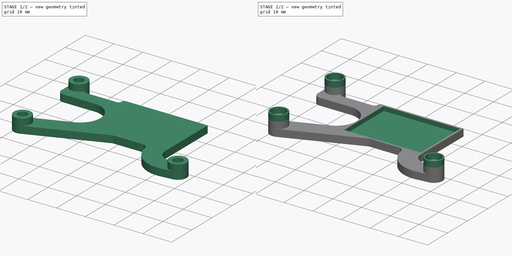
[diagram: build sequence overview — one tinted view per stage of 2, left to right]
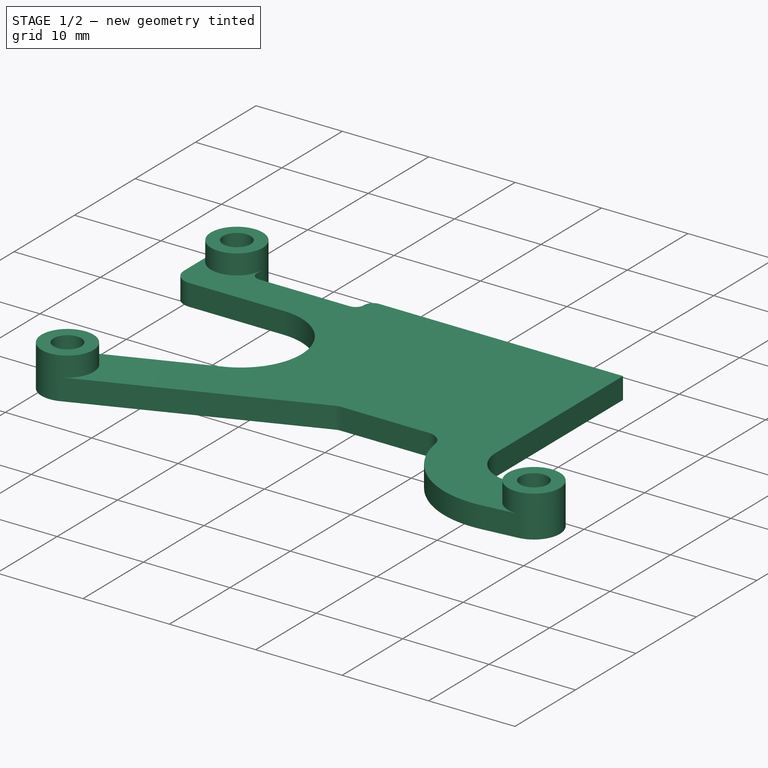
[diagram: stage 1 of 2 — iso view after this stage's code; geometry added in this stage tinted green]
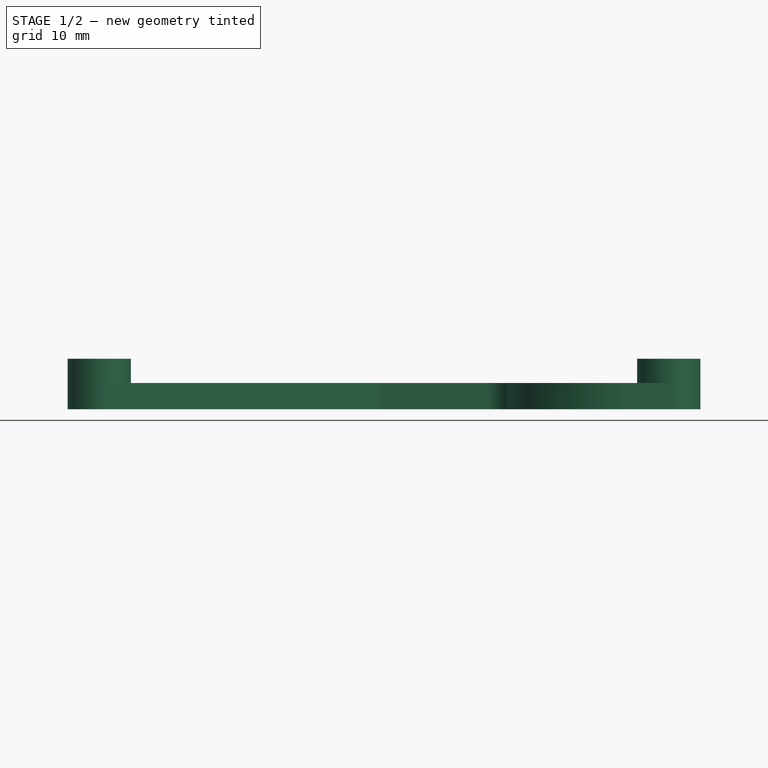
[diagram: stage 1 of 2 — front view after this stage's code; geometry added in this stage tinted green]
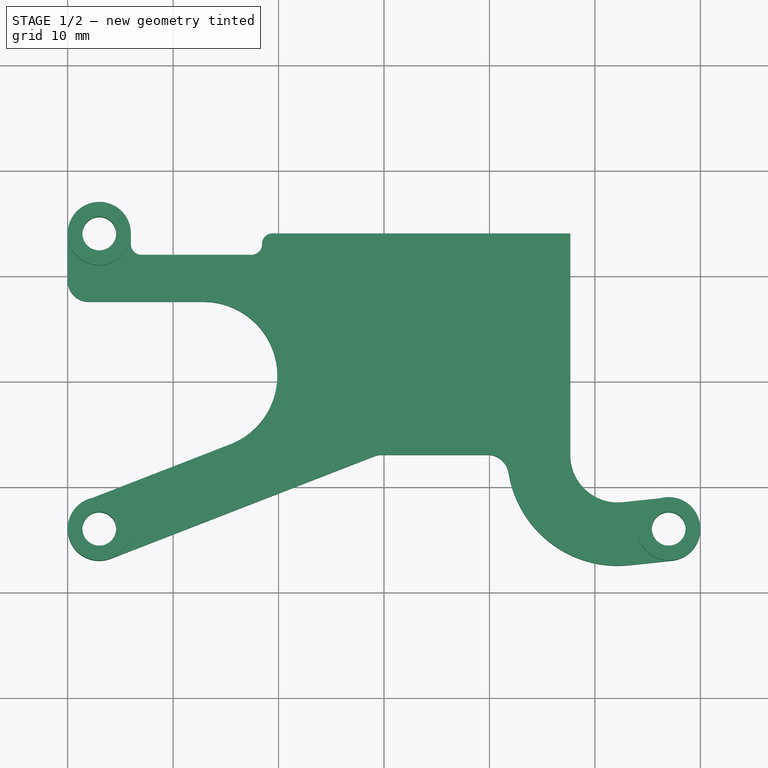
[diagram: stage 1 of 2 — top view after this stage's code; geometry added in this stage tinted green]
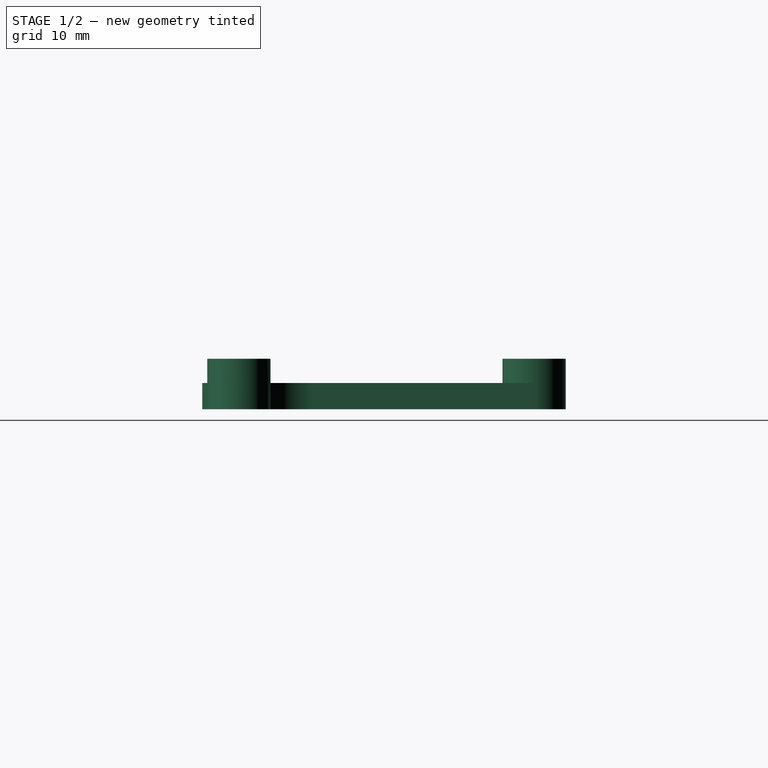
[diagram: stage 1 of 2 — right view after this stage's code; geometry added in this stage tinted green]
FCSTD DOCUMENT  (FreeCAD 0.16R)
Label: gpsframe2
License: CreativeCommons Attribution-ShareAlike
LicenseURL: http://creativecommons.org/licenses/by-sa/4.0/
objects: Sketcher::SketchObject×5, PartDesign::Pad×3, PartDesign::Pocket×1
note: 13 computed .brp shape members not serialized (recipe doc carries the construction recipe); baked Part::Feature solids carry a one-line shape summary decoded from their .brp

FEATURE [Sketcher::SketchObject] Sketch003  label="Holder Sketch"
  sketch-geometry (53):
    g0: Circle [constr] CenterX=-27 CenterY=14 CenterZ=0 NormalX=0 NormalY=0 NormalZ=1 Radius=2.375
    g1: Circle CenterX=-27 CenterY=14 CenterZ=0 NormalX=0 NormalY=0 NormalZ=1 Radius=1.6
    g2: Circle [constr] CenterX=27 CenterY=14 CenterZ=0 NormalX=0 NormalY=0 NormalZ=1 Radius=2.375
    g3: Circle [constr] CenterX=27 CenterY=14 CenterZ=0 NormalX=0 NormalY=0 NormalZ=1 Radius=1.6
    g4: Circle [constr] CenterX=27 CenterY=-14 CenterZ=0 NormalX=0 NormalY=0 NormalZ=1 Radius=2.375
    g5: Circle CenterX=27 CenterY=-14 CenterZ=0 NormalX=0 NormalY=0 NormalZ=1 Radius=1.6
    g6: Circle [constr] CenterX=-27 CenterY=-14 CenterZ=0 NormalX=0 NormalY=0 NormalZ=1 Radius=2.375
    g7: Circle CenterX=-27 CenterY=-14 CenterZ=0 NormalX=0 NormalY=0 NormalZ=1 Radius=1.6
    g8: Circle [constr] CenterX=-17.12 CenterY=0.57 CenterZ=0 NormalX=0 NormalY=0 NormalZ=1 Radius=6
    g9: LineSegment [constr] StartX=-23.37 StartY=16.22 StartZ=0 EndX=-12.57 EndY=16.22 EndZ=0
    g10: LineSegment [constr] StartX=-12.57 StartY=16.22 StartZ=0 EndX=-12.57 EndY=13.02 EndZ=0
    g11: LineSegment [constr] StartX=-12.57 StartY=13.02 StartZ=0 EndX=-23.37 EndY=13.02 EndZ=0
    g12: LineSegment [constr] StartX=-23.37 StartY=13.02 StartZ=0 EndX=-23.37 EndY=16.22 EndZ=0
    g13: LineSegment [constr] StartX=-2.27 StartY=18.25 StartZ=0 EndX=8.53 EndY=18.25 EndZ=0
    g14: LineSegment [constr] StartX=8.53 StartY=18.25 StartZ=0 EndX=8.53 EndY=15.05 EndZ=0
    g15: LineSegment [constr] StartX=8.53 StartY=15.05 StartZ=0 EndX=-2.27 EndY=15.05 EndZ=0
    g16: LineSegment [constr] StartX=-2.27 StartY=15.05 StartZ=0 EndX=-2.27 EndY=18.25 EndZ=0
    g17: Circle [constr] CenterX=22.17 CenterY=-6.97 CenterZ=0 NormalX=0 NormalY=0 NormalZ=1 Radius=4
    g18: LineSegment [constr] StartX=-29.47 StartY=23.55 StartZ=0 EndX=-26.27 EndY=23.55 EndZ=0
    g19: LineSegment [constr] StartX=-26.27 StartY=23.55 StartZ=0 EndX=-26.27 EndY=17.85 EndZ=0
    g20: LineSegment [constr] StartX=-26.27 StartY=17.85 StartZ=0 EndX=-29.47 EndY=17.85 EndZ=0
    g21: LineSegment [constr] StartX=-29.47 StartY=17.85 StartZ=0 EndX=-29.47 EndY=23.55 EndZ=0
    g22: LineSegment [constr] StartX=-10.23 StartY=14.35 StartZ=0 EndX=17.77 EndY=14.35 EndZ=0
    g23: LineSegment [constr] StartX=17.77 StartY=14.35 StartZ=0 EndX=17.77 EndY=-13.65 EndZ=0
    g24: LineSegment [constr] StartX=17.77 StartY=-13.65 StartZ=0 EndX=-10.23 EndY=-13.65 EndZ=0
    g25: LineSegment [constr] StartX=-10.23 StartY=-13.65 StartZ=0 EndX=-10.23 EndY=14.35 EndZ=0
    g26: LineSegment [constr] StartX=-9.23 StartY=13.05 StartZ=0 EndX=16.77 EndY=13.05 EndZ=0
    g27: LineSegment [constr] StartX=16.77 StartY=13.05 StartZ=0 EndX=16.77 EndY=-5.95 EndZ=0
    g28: LineSegment [constr] StartX=16.77 StartY=-5.95 StartZ=0 EndX=-9.23 EndY=-5.95 EndZ=0
    g29: LineSegment [constr] StartX=-9.23 StartY=-5.95 StartZ=0 EndX=-9.23 EndY=13.05 EndZ=0
    g30: ArcOfCircle CenterX=-27 CenterY=-14 CenterZ=0 NormalX=0 NormalY=0 NormalZ=1 Radius=3 StartAngle=1.94157 EndAngle=5.08317
    g31: LineSegment StartX=9.82781 StartY=-6.95 StartZ=0 EndX=-0.210661 EndY=-6.95 EndZ=0
    g32: LineSegment StartX=-25.913 StartY=-16.7961 StartZ=0 EndX=-0.93534 EndY=-7.08591 EndZ=0
    g33: ArcOfCircle CenterX=-0.210661 CenterY=-8.95 CenterZ=0 NormalX=0 NormalY=0 NormalZ=1 Radius=2 StartAngle=1.5708 EndAngle=1.94157
    g34: LineSegment StartX=-28.087 StartY=-11.2039 StartZ=0 EndX=-14.5836 EndY=-5.95432 EndZ=0
    g35: ArcOfCircle CenterX=-17.12 CenterY=0.57 CenterZ=0 NormalX=0 NormalY=0 NormalZ=1 Radius=7 StartAngle=5.08317 EndAngle=7.85398
    g36: ArcOfCircle CenterX=27 CenterY=-14 CenterZ=0 NormalX=0 NormalY=0 NormalZ=1 Radius=3 StartAngle=4.818 EndAngle=7.9596
    g37: ArcOfCircle CenterX=-27 CenterY=14 CenterZ=0 NormalX=0 NormalY=0 NormalZ=1 Radius=3 StartAngle=0 EndAngle=3.14159
    g38: LineSegment StartX=-30 StartY=14 StartZ=0 EndX=-30 EndY=9.57 EndZ=0
    g39: LineSegment StartX=17.67 StartY=14.05 StartZ=0 EndX=-10.5701 EndY=14.05 EndZ=0
    g40: ArcOfCircle CenterX=9.82781 CenterY=-8.95 CenterZ=0 NormalX=0 NormalY=0 NormalZ=1 Radius=2 StartAngle=0.15907 EndAngle=1.5708
    g41: ArcOfCircle CenterX=22.17 CenterY=-6.97 CenterZ=0 NormalX=0 NormalY=0 NormalZ=1 Radius=10.5 StartAngle=3.30066 EndAngle=4.818
    g42: LineSegment StartX=17.67 StartY=14.05 StartZ=0 EndX=17.67 EndY=-6.97 EndZ=0
    g43: ArcOfCircle CenterX=22.17 CenterY=-6.97 CenterZ=0 NormalX=0 NormalY=0 NormalZ=1 Radius=4.5 StartAngle=3.14159 EndAngle=4.818
    g44: LineSegment StartX=22.6444 StartY=-11.4449 StartZ=0 EndX=26.6837 EndY=-11.0167 EndZ=0
    g45: LineSegment StartX=23.2769 StartY=-17.4115 StartZ=0 EndX=27.3163 EndY=-16.9833 EndZ=0
    g46: LineSegment StartX=-17.12 StartY=7.57 StartZ=0 EndX=-28 EndY=7.57 EndZ=0
    g47: ArcOfCircle CenterX=-28 CenterY=9.57 CenterZ=0 NormalX=0 NormalY=0 NormalZ=1 Radius=2 StartAngle=3.14159 EndAngle=4.71239
    g48: LineSegment StartX=-23 StartY=12.02 StartZ=0 EndX=-12.5699 EndY=12.02 EndZ=0
    g49: ArcOfCircle CenterX=-23 CenterY=13.02 CenterZ=0 NormalX=0 NormalY=0 NormalZ=1 Radius=1 StartAngle=3.14159 EndAngle=4.71239
    g50: LineSegment StartX=-24 StartY=13.02 StartZ=0 EndX=-24 EndY=14 EndZ=0
    g51: ArcOfCircle CenterX=-10.5701 CenterY=13.05 CenterZ=0 NormalX=0 NormalY=0 NormalZ=1 Radius=1 StartAngle=1.5708 EndAngle=3.15659
    g52: ArcOfCircle CenterX=-12.5699 CenterY=13.02 CenterZ=0 NormalX=0 NormalY=0 NormalZ=1 Radius=1 StartAngle=4.71239 EndAngle=6.29819
  constraints (137):
    c: Coincident(g1,g0)
    c: Coincident(g3,g2)
    c: Coincident(g5,g4)
    c: Coincident(g7,g6)
    c: Equal(g0,g6)
    c: Equal(g6,g4)
    c: Equal(g4,g2)
    c: Equal(g3,g1)
    c: Equal(g1,g7)
    c: Equal(g7,g5)
    c: Symmetric(g0,g6,g-1)
    c: Symmetric(g0,g2,g-2)
    c: Symmetric(g4,g6,g-2)
    c: DistanceX(g6,g4) = 54
    c: DistanceY(g6,g0) = 28
    c: Radius(g1) = 1.6
    c: Radius(g0) = 2.375
    c: Coincident(g9,g10)
    c: Coincident(g10,g11)
    c: Coincident(g11,g12)
    c: Coincident(g12,g9)
    c: Horizontal(g9)
    c: Horizontal(g11)
    c: Vertical(g10)
    c: Vertical(g12)
    c: Coincident(g13,g14)
    c: Coincident(g14,g15)
    c: Coincident(g15,g16)
    c: Coincident(g16,g13)
    c: Horizontal(g13)
    c: Horizontal(g15)
    c: Vertical(g14)
    c: Vertical(g16)
    c: Coincident(g18,g19)
    c: Coincident(g19,g20)
    c: Coincident(g20,g21)
    c: Coincident(g21,g18)
    c: Horizontal(g18)
    c: Horizontal(g20)
    c: Vertical(g19)
    c: Vertical(g21)
    c: Radius(g8) = 6
    c: Radius(g17) = 4
    c: DistanceX(g9,g9) = 10.8
    c: DistanceY(g12,g12) = 3.2
    c: Equal(g20,g12)
    c: Equal(g12,g16)
    c: Equal(g9,g13)
    c: DistanceY(g19,g19) = 5.7
    c: DistanceX(g0,g11) = 3.63
    c: DistanceX(g0,g19) = 0.73
    c: DistanceY(g0,g19) = 3.85
    c: DistanceX(g0,g8) = 9.88
    c: DistanceY(g8,g0) = 13.43
    c: DistanceX(g0,g15) = 24.73
    c: DistanceY(g15,g0) = -1.05
    c: DistanceX(g17,g2) = 4.83
    c: DistanceY(g17,g2) = 20.97
    c: Coincident(g22,g23)
    c: Coincident(g23,g24)
    c: Coincident(g24,g25)
    c: Coincident(g25,g22)
    c: Horizontal(g22)
    c: Horizontal(g24)
    c: Vertical(g23)
    c: Vertical(g25)
    c: DistanceX(g24,g24) = 28
    c: Equal(g24,g23)
    c: Coincident(g26,g27)
    c: Coincident(g27,g28)
    c: Coincident(g28,g29)
    c: Coincident(g29,g26)
    c: Horizontal(g26)
    c: Horizontal(g28)
    c: Vertical(g27)
    c: Vertical(g29)
    c: DistanceX(g28,g28) = 26
    c: DistanceY(g29,g29) = 19
    c: DistanceY(g26,g22) = 1.3
    c: DistanceX(g24,g28) = 1
    c: Coincident(g30,g6)
    c: Radius(g30) = 3
    c: Horizontal(g31)
    c: Coincident(g32,g30)
    c: Tangent(g30,g32) = -1.5708
    c: Tangent(g32,g33) = 1.5708
    c: Tangent(g31,g33) = -1.5708
    c: Coincident(g35,g8)
    c: Tangent(g34,g35) = -1.5708
    c: Parallel(g34,g32)
    c: Coincident(g36,g4)
    c: Coincident(g37,g0)
    c: Equal(g37,g30)
    c: Equal(g30,g36)
    c: Tangent(g37,g38) = -1.5708
    c: Horizontal(g39)
    c: Tangent(g30,g34) = 1.5708
    c: Tangent(g31,g40) = -1.5708
    c: Vertical(g42)
    c: Tangent(g42,g43) = -1.5708
    c: Tangent(g36,g44) = 1.5708
    c: Coincident(g43,g17)
    c: Coincident(g41,g17)
    c: Tangent(g40,g41) = 1.5708
    c: Radius(g35) = 7
    c: DistanceY(g31,g27) = 1
    c: Radius(g43) = 4.5
    c: DistanceX(g26,g42) = 0.9
    c: DistanceY(g26,g39) = 1
    c: Tangent(g36,g45) = -1.5708
    c: DistanceY(g39,g14) = 1
    c: Parallel(g44,g45)
    c: Tangent(g43,g44) = -1.5708
    c: Tangent(g41,g45) = -1.5708
    c: Horizontal(g46)
    c: Vertical(g38)
    c: Tangent(g38,g47) = -1.5708
    c: Tangent(g46,g47) = 1.5708
    c: Tangent(g35,g46) = -1.5708
    c: Horizontal(g48)
    c: Tangent(g48,g49) = -1.5708
    c: Vertical(g50)
    c: Tangent(g49,g50) = 1.5708
    c: Tangent(g37,g50) = -1.5708
    c: Tangent(g39,g51) = -1.5708
    c: Tangent(g48,g52) = -1.5708
    c: Radius(g49) = 1
    c: Equal(g49,g52)
    c: Equal(g52,g51)
    c: Tangent(g51,g52) = 1.5708
    c: DistanceY(g48,g11) = 1
    c: DistanceY(g11,g0) = 0.98
    c: DistanceX(g10,g51) = 1
    c: Radius(g40) = 2
    c: Equal(g33,g40)
    c: Coincident(g39,g42)
    c: Equal(g47,g40)
FEATURE [PartDesign::Pad] Pad  label="Base"
  Length = 2.5
  Length2 = 100
  Sketch = -> Sketch003
  Type = 0
FEATURE [Sketcher::SketchObject] Sketch  label="Screws Sketch"
  ExternalGeometry = -> [Pad]
  Placement = pos=(0,0,2.5) rot=(0,0,1;0rad)
  Support = -> Pad [Face28]
  sketch-geometry (6):
    g0: Circle CenterX=-27 CenterY=14 CenterZ=0 NormalX=0 NormalY=0 NormalZ=1 Radius=1.6
    g1: Circle CenterX=-27 CenterY=14 CenterZ=0 NormalX=0 NormalY=0 NormalZ=1 Radius=3
    g2: Circle CenterX=27 CenterY=-14 CenterZ=0 NormalX=0 NormalY=0 NormalZ=1 Radius=1.6
    g3: Circle CenterX=27 CenterY=-14 CenterZ=0 NormalX=0 NormalY=0 NormalZ=1 Radius=3
    g4: Circle CenterX=-27 CenterY=-14 CenterZ=0 NormalX=0 NormalY=0 NormalZ=1 Radius=1.6
    g5: Circle CenterX=-27 CenterY=-14 CenterZ=0 NormalX=0 NormalY=0 NormalZ=1 Radius=3
  constraints (12):
    c: Coincident(g0,g-8)
    c: Equal(g0,g-8)
    c: Coincident(g1,g0)
    c: Equal(g1,g-3)
    c: Coincident(g2,g-7)
    c: Coincident(g3,g2)
    c: Equal(g2,g-6)
    c: Equal(g3,g-7)
    c: Coincident(g4,g-5)
    c: Coincident(g5,g4)
    c: Equal(g4,g-4)
    c: Equal(g5,g-5)
FEATURE [PartDesign::Pad] Pad001  label="Screws"
  Length = 2.3
  Length2 = 100
  Sketch = -> Sketch
  Type = 0
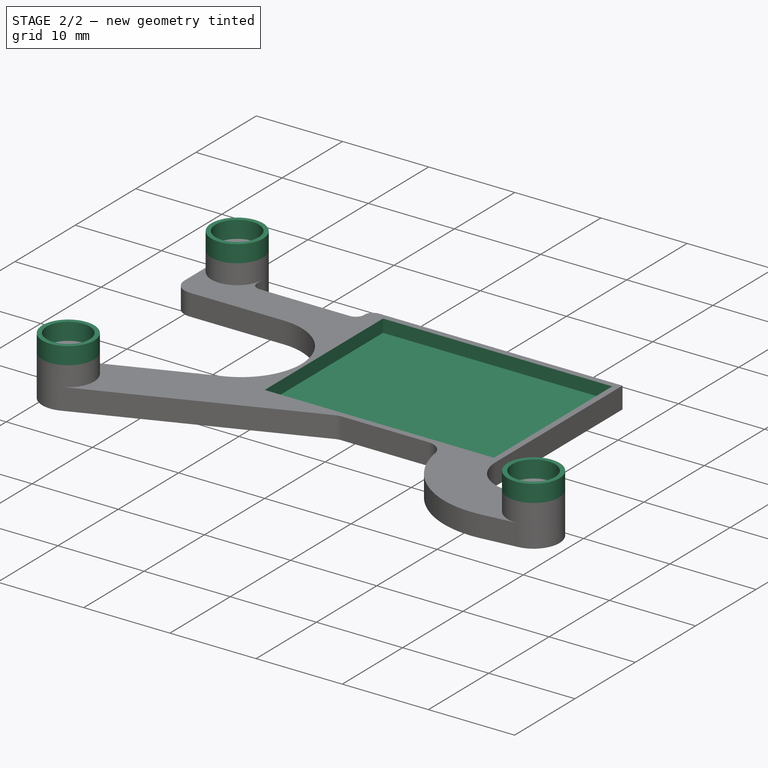
[diagram: stage 2 of 2 — iso view after this stage's code; geometry added in this stage tinted green]
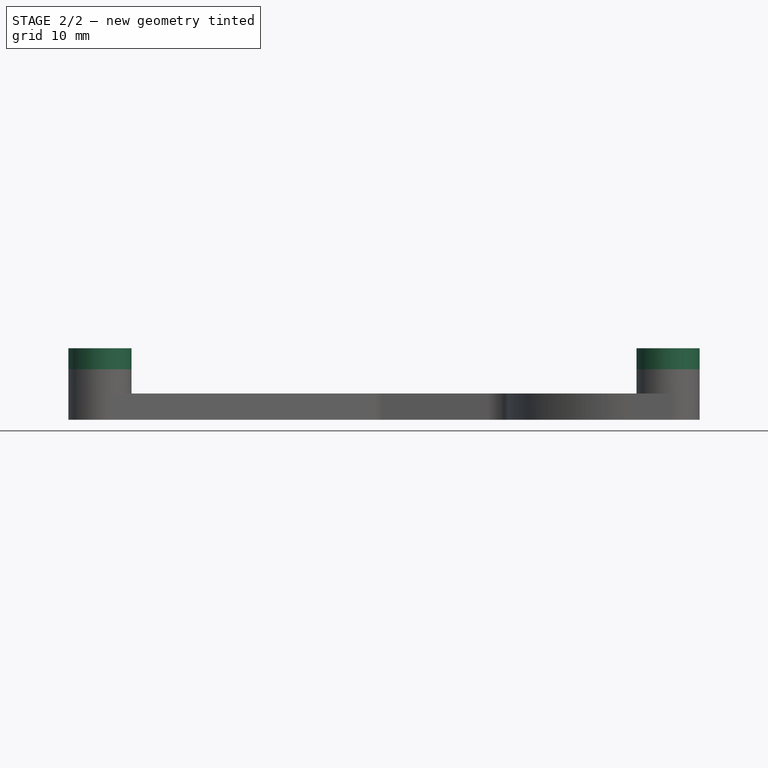
[diagram: stage 2 of 2 — front view after this stage's code; geometry added in this stage tinted green]
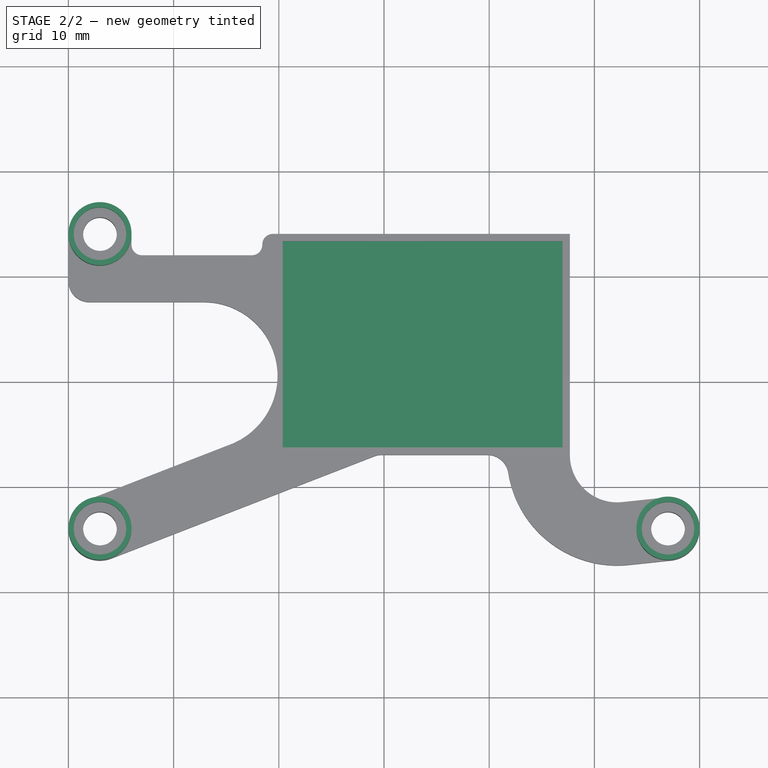
[diagram: stage 2 of 2 — top view after this stage's code; geometry added in this stage tinted green]
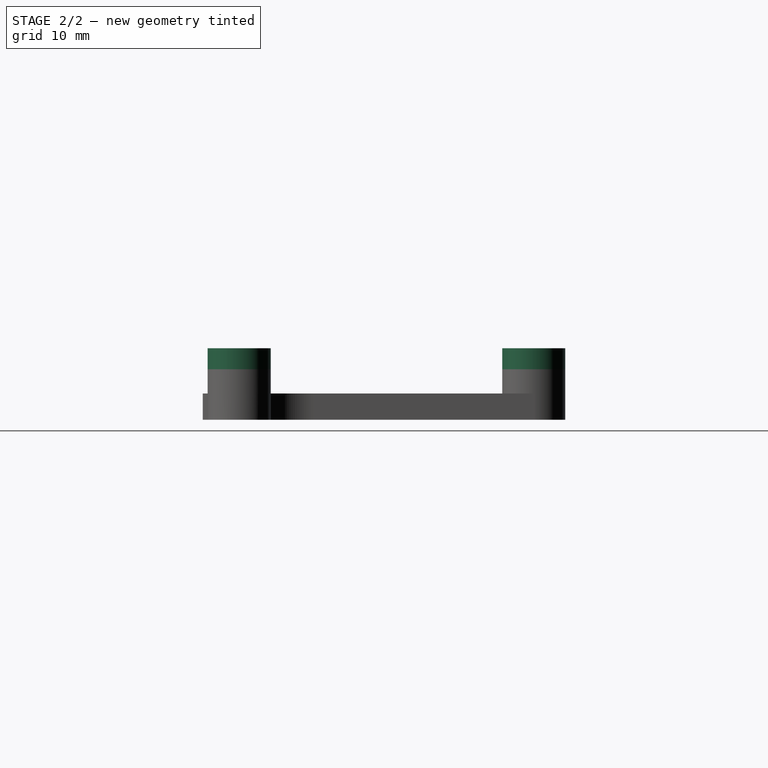
[diagram: stage 2 of 2 — right view after this stage's code; geometry added in this stage tinted green]
FEATURE [Sketcher::SketchObject] Sketch004  label="Screw Pad Sketch"
  ExternalGeometry = -> [Pad001]
  Placement = pos=(0,0,4.8) rot=(0,0,1;0rad)
  Support = -> Pad001 [Face37]
  sketch-geometry (6):
    g0: Circle CenterX=-27 CenterY=14 CenterZ=0 NormalX=0 NormalY=0 NormalZ=1 Radius=3
    g1: Circle CenterX=-27 CenterY=-14 CenterZ=0 NormalX=0 NormalY=0 NormalZ=1 Radius=3
    g2: Circle CenterX=27 CenterY=-14 CenterZ=0 NormalX=0 NormalY=0 NormalZ=1 Radius=3
    g3: Circle CenterX=-27 CenterY=14 CenterZ=0 NormalX=0 NormalY=0 NormalZ=1 Radius=2.5
    g4: Circle CenterX=-27 CenterY=-14 CenterZ=0 NormalX=0 NormalY=0 NormalZ=1 Radius=2.5
    g5: Circle CenterX=27 CenterY=-14 CenterZ=0 NormalX=0 NormalY=0 NormalZ=1 Radius=2.5
  constraints (12):
    c: Coincident(g0,g-4)
    c: Equal(g-4,g0)
    c: Coincident(g1,g-3)
    c: Equal(g-3,g1)
    c: Coincident(g2,g-5)
    c: Equal(g2,g-5)
    c: Coincident(g3,g0)
    c: Radius(g3) = 2.5
    c: Coincident(g4,g1)
    c: Coincident(g5,g2)
    c: Equal(g3,g4)
    c: Equal(g4,g5)
FEATURE [PartDesign::Pad] Pad002  label="Screw Pad"
  Length = 2
  Length2 = 100
  Sketch = -> Sketch004
  Type = 0
FEATURE [Sketcher::SketchObject] Sketch005  label="Gps Chip Pocket Sketch"
  ExternalGeometry = -> [Pad]
  Placement = pos=(0,0,2.5) rot=(0,0,1;0rad)
  Support = -> Pad002 [Face5]
  sketch-geometry (4):
    g0: LineSegment StartX=16.97 StartY=13.35 StartZ=0 EndX=-9.63 EndY=13.35 EndZ=0
    g1: LineSegment StartX=-9.63 StartY=13.35 StartZ=0 EndX=-9.63 EndY=-6.25 EndZ=0
    g2: LineSegment StartX=-9.63 StartY=-6.25 StartZ=0 EndX=16.97 EndY=-6.25 EndZ=0
    g3: LineSegment StartX=16.97 StartY=-6.25 StartZ=0 EndX=16.97 EndY=13.35 EndZ=0
  constraints (12):
    c: Coincident(g0,g1)
    c: Coincident(g1,g2)
    c: Coincident(g2,g3)
    c: Coincident(g3,g0)
    c: Horizontal(g0)
    c: Horizontal(g2)
    c: Vertical(g1)
    c: Vertical(g3)
    c: DistanceX(g0,g-4) = 0.7
    c: DistanceY(g0,g-4) = 0.7
    c: DistanceX(g0,g0) = 26.6
    c: DistanceY(g1,g1) = 19.6
FEATURE [PartDesign::Pocket] Pocket
  Length = 1.5
  Sketch = -> Sketch005
  Type = 0
FEATURE [Sketcher::SketchObject] Sketch002  label="PCB Layout"
  sketch-geometry (35):
    g0: Circle CenterX=-27 CenterY=14 CenterZ=0 NormalX=0 NormalY=0 NormalZ=1 Radius=2.375
    g1: Circle CenterX=-27 CenterY=14 CenterZ=0 NormalX=0 NormalY=0 NormalZ=1 Radius=1.6
    g2: Circle CenterX=27 CenterY=14 CenterZ=0 NormalX=0 NormalY=0 NormalZ=1 Radius=2.375
    g3: Circle CenterX=27 CenterY=14 CenterZ=0 NormalX=0 NormalY=0 NormalZ=1 Radius=1.6
    g4: Circle CenterX=27 CenterY=-14 CenterZ=0 NormalX=0 NormalY=0 NormalZ=1 Radius=2.375
    g5: Circle CenterX=27 CenterY=-14 CenterZ=0 NormalX=0 NormalY=0 NormalZ=1 Radius=1.6
    g6: Circle CenterX=-27 CenterY=-14 CenterZ=0 NormalX=0 NormalY=0 NormalZ=1 Radius=2.375
    g7: Circle CenterX=-27 CenterY=-14 CenterZ=0 NormalX=0 NormalY=0 NormalZ=1 Radius=1.6
    g8: Circle CenterX=-17.12 CenterY=0.57 CenterZ=0 NormalX=0 NormalY=0 NormalZ=1 Radius=6
    g9: LineSegment StartX=-23.37 StartY=16.22 StartZ=0 EndX=-12.57 EndY=16.22 EndZ=0
    g10: LineSegment StartX=-12.57 StartY=16.22 StartZ=0 EndX=-12.57 EndY=13.02 EndZ=0
    g11: LineSegment StartX=-12.57 StartY=13.02 StartZ=0 EndX=-23.37 EndY=13.02 EndZ=0
    g12: LineSegment StartX=-23.37 StartY=13.02 StartZ=0 EndX=-23.37 EndY=16.22 EndZ=0
    g13: LineSegment StartX=-2.27 StartY=18.25 StartZ=0 EndX=8.53 EndY=18.25 EndZ=0
    g14: LineSegment StartX=8.53 StartY=18.25 StartZ=0 EndX=8.53 EndY=15.05 EndZ=0
    g15: LineSegment StartX=8.53 StartY=15.05 StartZ=0 EndX=-2.27 EndY=15.05 EndZ=0
    g16: LineSegment StartX=-2.27 StartY=15.05 StartZ=0 EndX=-2.27 EndY=18.25 EndZ=0
    g17: Circle CenterX=22.17 CenterY=1.54 CenterZ=0 NormalX=0 NormalY=0 NormalZ=1 Radius=4
    g18: Circle CenterX=22.17 CenterY=-6.97 CenterZ=0 NormalX=0 NormalY=0 NormalZ=1 Radius=4
    g19: LineSegment StartX=27.38 StartY=5.34 StartZ=0 EndX=45.38 EndY=5.34 EndZ=0
    g20: LineSegment StartX=45.38 StartY=5.34 StartZ=0 EndX=45.38 EndY=-10.66 EndZ=0
    g21: LineSegment StartX=45.38 StartY=-10.66 StartZ=0 EndX=27.38 EndY=-10.66 EndZ=0
    g22: LineSegment StartX=27.38 StartY=-10.66 StartZ=0 EndX=27.38 EndY=5.34 EndZ=0
    g23: LineSegment StartX=-29.47 StartY=23.55 StartZ=0 EndX=-26.27 EndY=23.55 EndZ=0
    g24: LineSegment StartX=-26.27 StartY=23.55 StartZ=0 EndX=-26.27 EndY=17.85 EndZ=0
    g25: LineSegment StartX=-26.27 StartY=17.85 StartZ=0 EndX=-29.47 EndY=17.85 EndZ=0
    g26: LineSegment StartX=-29.47 StartY=17.85 StartZ=0 EndX=-29.47 EndY=23.55 EndZ=0
    g27: LineSegment [constr] StartX=-10.6004 StartY=13.1451 StartZ=0 EndX=17.3996 EndY=13.1451 EndZ=0
    g28: LineSegment [constr] StartX=17.3996 StartY=13.1451 StartZ=0 EndX=17.3996 EndY=-14.8549 EndZ=0
    g29: LineSegment [constr] StartX=17.3996 StartY=-14.8549 StartZ=0 EndX=-10.6004 EndY=-14.8549 EndZ=0
    g30: LineSegment [constr] StartX=-10.6004 StartY=-14.8549 StartZ=0 EndX=-10.6004 EndY=13.1451 EndZ=0
    g31: LineSegment [constr] StartX=-9.60042 StartY=11.8451 StartZ=0 EndX=16.3996 EndY=11.8451 EndZ=0
    g32: LineSegment [constr] StartX=16.3996 StartY=11.8451 StartZ=0 EndX=16.3996 EndY=-7.1549 EndZ=0
    g33: LineSegment [constr] StartX=16.3996 StartY=-7.1549 StartZ=0 EndX=-9.60042 EndY=-7.1549 EndZ=0
    g34: LineSegment [constr] StartX=-9.60042 StartY=-7.1549 StartZ=0 EndX=-9.60042 EndY=11.8451 EndZ=0
  constraints (96):
    c: Coincident(g1,g0)
    c: Coincident(g3,g2)
    c: Coincident(g5,g4)
    c: Coincident(g7,g6)
    c: Equal(g0,g6)
    c: Equal(g6,g4)
    c: Equal(g4,g2)
    c: Equal(g3,g1)
    c: Equal(g1,g7)
    c: Equal(g7,g5)
    c: Symmetric(g0,g6,g-1)
    c: Symmetric(g0,g2,g-2)
    c: Symmetric(g4,g6,g-2)
    c: DistanceX(g6,g4) = 54
    c: DistanceY(g6,g0) = 28
    c: Radius(g1) = 1.6
    c: Radius(g0) = 2.375
    c: Coincident(g9,g10)
    c: Coincident(g10,g11)
    c: Coincident(g11,g12)
    c: Coincident(g12,g9)
    c: Horizontal(g9)
    c: Horizontal(g11)
    c: Vertical(g10)
    c: Vertical(g12)
    c: Coincident(g13,g14)
    c: Coincident(g14,g15)
    c: Coincident(g15,g16)
    c: Coincident(g16,g13)
    c: Horizontal(g13)
    c: Horizontal(g15)
    c: Vertical(g14)
    c: Vertical(g16)
    c: Coincident(g19,g20)
    c: Coincident(g20,g21)
    c: Coincident(g21,g22)
    c: Coincident(g22,g19)
    c: Horizontal(g19)
    c: Horizontal(g21)
    c: Vertical(g20)
    c: Vertical(g22)
    c: Coincident(g23,g24)
    c: Coincident(g24,g25)
    c: Coincident(g25,g26)
    c: Coincident(g26,g23)
    c: Horizontal(g23)
    c: Horizontal(g25)
    c: Vertical(g24)
    c: Vertical(g26)
    c: Radius(g8) = 6
    c: Radius(g17) = 4
    c: Radius(g18) = 4
    c: DistanceX(g9,g9) = 10.8
    c: DistanceY(g12,g12) = 3.2
    c: Equal(g25,g12)
    c: Equal(g12,g16)
    c: Equal(g9,g13)
    c: DistanceY(g24,g24) = 5.7
    c: DistanceY(g20,g20) = 16
    c: DistanceX(g19,g19) = 18
    c: DistanceX(g0,g11) = 3.63
    c: DistanceY(g11,g0) = 0.98
    c: DistanceX(g0,g24) = 0.73
    c: DistanceY(g0,g24) = 3.85
    c: DistanceX(g0,g8) = 9.88
    c: DistanceY(g8,g0) = 13.43
    c: DistanceX(g0,g15) = 24.73
    c: DistanceY(g15,g0) = -1.05
    c: DistanceX(g18,g2) = 4.83
    c: DistanceY(g18,g2) = 20.97
    c: DistanceX(g17,g18) = 0
    c: DistanceX(g2,g19) = 0.38
    c: DistanceY(g19,g2) = 8.66
    c: DistanceY(g18,g17) = 8.51
    c: Coincident(g27,g28)
    c: Coincident(g28,g29)
    c: Coincident(g29,g30)
    c: Coincident(g30,g27)
    c: Horizontal(g27)
    c: Horizontal(g29)
    c: Vertical(g28)
    c: Vertical(g30)
    c: DistanceX(g29,g29) = 28
    c: Equal(g29,g28)
    c: Coincident(g31,g32)
    c: Coincident(g32,g33)
    c: Coincident(g33,g34)
    c: Coincident(g34,g31)
    c: Horizontal(g31)
    c: Horizontal(g33)
    c: Vertical(g32)
    c: Vertical(g34)
    c: DistanceX(g33,g33) = 26
    c: DistanceY(g34,g34) = 19
    c: DistanceY(g31,g27) = 1.3
    c: DistanceX(g29,g33) = 1
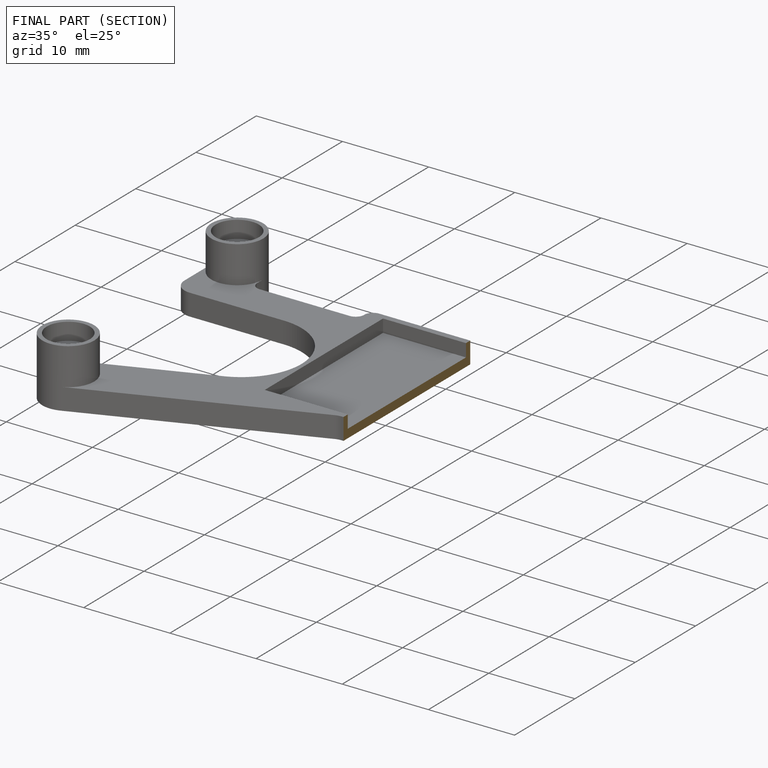
[diagram: finished part — half-section view (interior)]
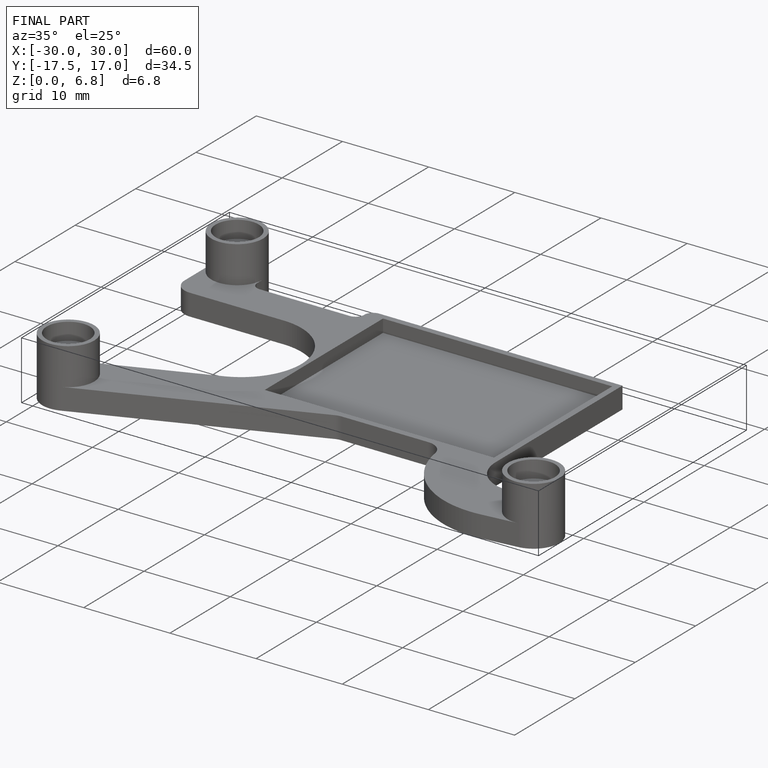
[diagram: finished part — iso view with bounding-box wireframe]
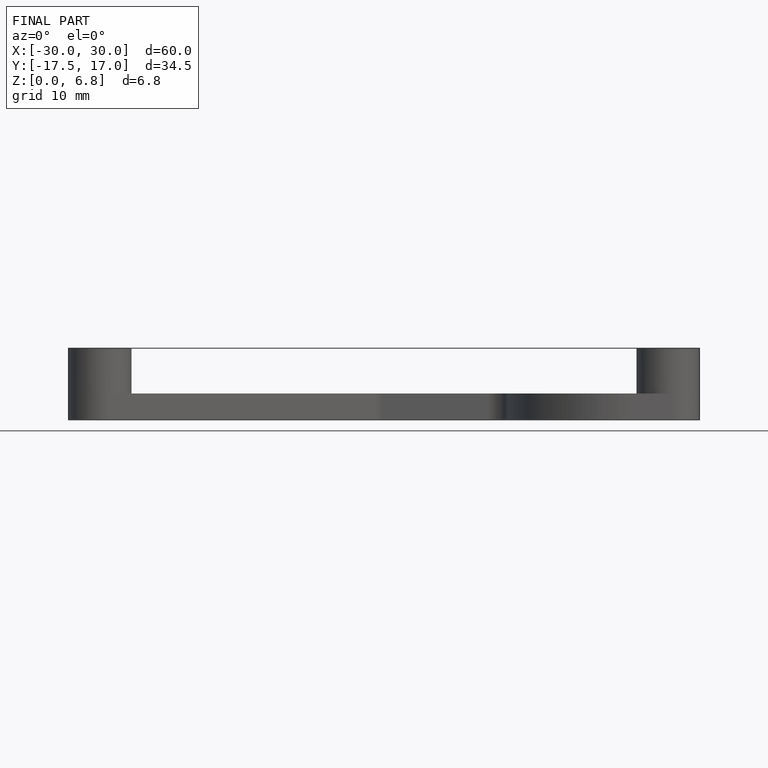
[diagram: finished part — front view with bounding-box wireframe]
